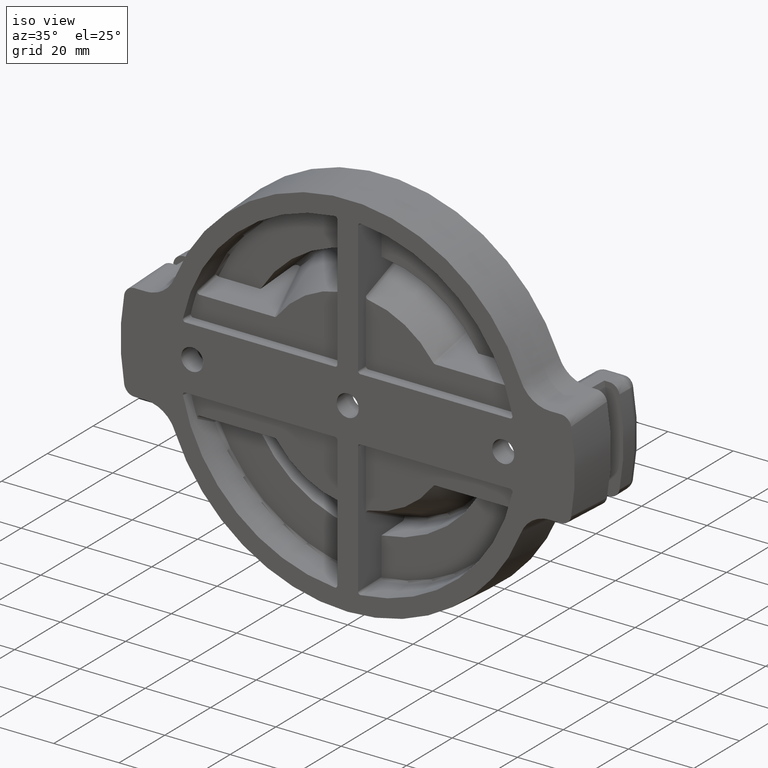
[diagram: clean part render]
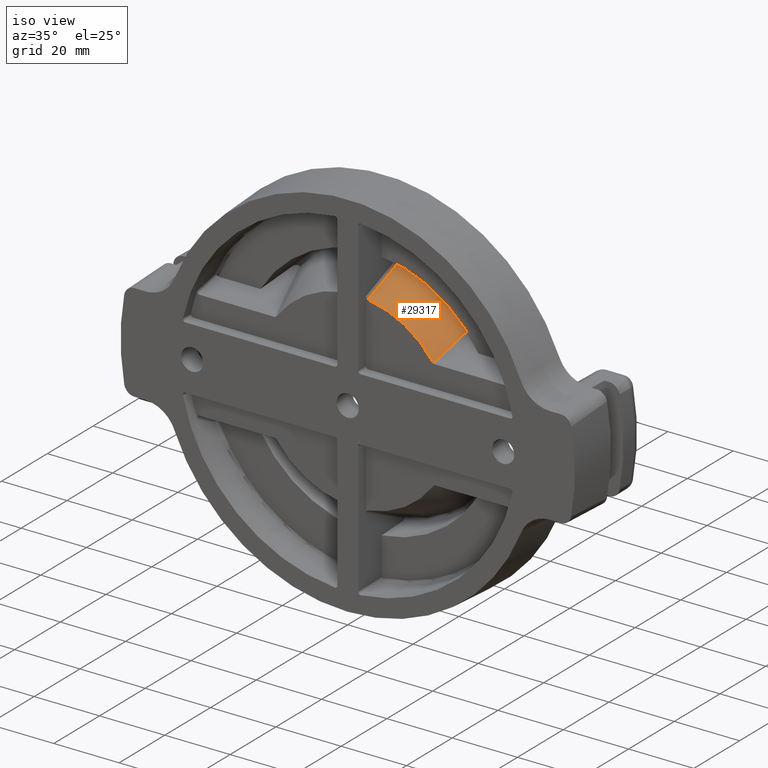
[diagram: same view with one face highlighted and labeled with its STEP entity id]
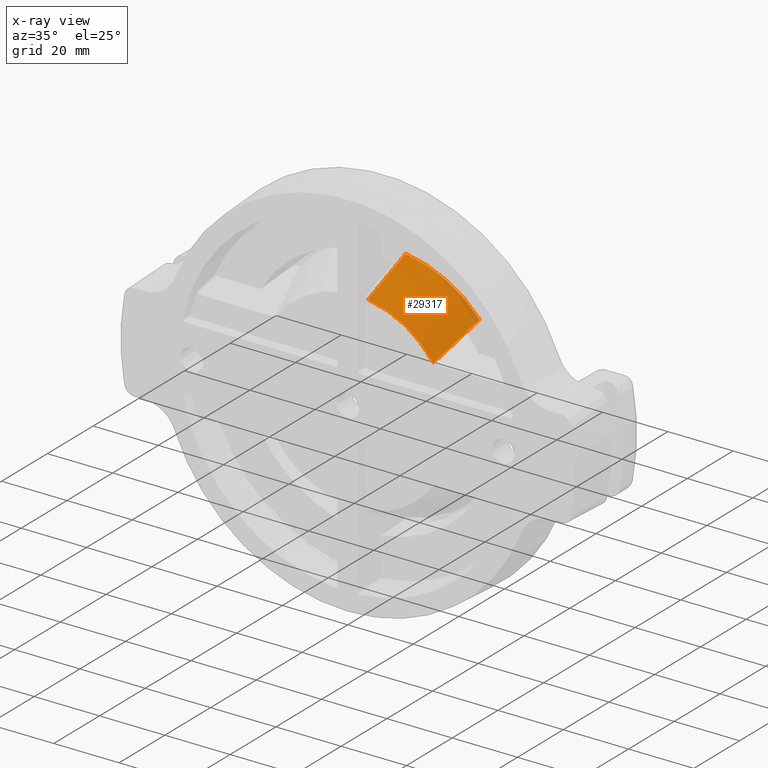
[diagram: x-ray of the same camera — body ghosted, the highlighted face saturated]
A machine part, iso view. The second image highlights one B-rep face of the part: STEP entity #29317.
The next image is the same camera in x-ray: the body ghosted, the highlighted face saturated — about 4% of this face is hidden behind the body in this view.
In plain terms, the highlighted conical surface has half-angle 25 deg.
Its self-contained STEP definition (entity closure, byte-faithful):
#2565 = CARTESIAN_POINT ( 'NONE',  ( 0.0000000000000000000, 0.1250000000000000300, 0.0000000000000000000 ) ) ;
#2573 = DIRECTION ( 'NONE',  ( -0.0000000000000000000, -1.000000000000000000, -0.0000000000000000000 ) ) ;
#2574 = DIRECTION ( 'NONE',  ( 1.776356839400250500E-015, 0.0000000000000000000, 1.000000000000000000 ) ) ;
#3486 = CIRCLE ( 'NONE', #12354, 1.439093768214044600 ) ;
#5475 = CARTESIAN_POINT ( 'NONE',  ( 0.9455306889045732600, 0.1250000000000000300, 0.6707257293922175300 ) ) ;
#5488 = CARTESIAN_POINT ( 'NONE',  ( 0.1888097916391700300, 0.7250892288995135500, 1.426654035249496300 ) ) ;
#5517 = CARTESIAN_POINT ( 'NONE',  ( 0.9942358607354898600, 0.3245060129297285800, 0.7628584657525210300 ) ) ;
#5519 = CARTESIAN_POINT ( 'NONE',  ( 1.039500466852395900, 0.5246081612140087700, 0.8554705154947027700 ) ) ;
#5521 = CARTESIAN_POINT ( 'NONE',  ( 1.082402062752005900, 0.7250892288995135500, 0.9483652504508486300 ) ) ;
#5524 = CARTESIAN_POINT ( 'NONE',  ( 0.0000000000000000000, 0.7250892288995134400, 0.0000000000000000000 ) ) ;
#5526 = CARTESIAN_POINT ( 'NONE',  ( 0.1878569212007646900, 0.7069636345795238300, 1.418254340702804100 ) ) ;
#5528 = CARTESIAN_POINT ( 'NONE',  ( 0.1869040002954244200, 0.6888380498057187200, 1.409854631281356200 ) ) ;
#5530 = CARTESIAN_POINT ( 'NONE',  ( 0.1859510262109140800, 0.6707124750824400300, 1.401454906205613900 ) ) ;
#5532 = CARTESIAN_POINT ( 'NONE',  ( 0.1821391298726066900, 0.5982101761842667500, 1.367856005900300000 ) ) ;
#5534 = CARTESIAN_POINT ( 'NONE',  ( 0.1783263872932623900, 0.5257080372451702300, 1.334256856413238000 ) ) ;
#5536 = CARTESIAN_POINT ( 'NONE',  ( 0.1745125904735285700, 0.4532060968209099500, 1.300657398240890900 ) ) ;
#5538 = CARTESIAN_POINT ( 'NONE',  ( 0.1687577227933380300, 0.3438035529990297600, 1.249957152515307300 ) ) ;
#5540 = CARTESIAN_POINT ( 'NONE',  ( 0.1630004828406031700, 0.2344014560641310400, 1.199256211628978900 ) ) ;
#5542 = CARTESIAN_POINT ( 'NONE',  ( 0.1572398165033016300, 0.1250000000000000300, 1.148554277269945700 ) ) ;
#5547 = DIRECTION ( 'NONE',  ( -0.0000000000000000000, -1.000000000000000000, -0.0000000000000000000 ) ) ;
#5549 = DIRECTION ( 'NONE',  ( -3.552713678800500900E-015, 0.0000000000000000000, 1.000000000000000000 ) ) ;
#7360 = EDGE_CURVE ( 'NONE', #30803, #30804, #28707, .T. ) ;
#11278 = CARTESIAN_POINT ( 'NONE',  ( 0.0000000000000000000, 0.2693454345648251800, 0.0000000000000000000 ) ) ;
#11280 = DIRECTION ( 'NONE',  ( 0.0000000000000000000, 0.0000000000000000000, 1.000000000000000000 ) ) ;
#11281 = DIRECTION ( 'NONE',  ( 0.0000000000000000000, 1.000000000000000000, 0.0000000000000000000 ) ) ;
#11913 = AXIS2_PLACEMENT_3D ( 'NONE', #11278, #11281, #11280 ) ;
#12354 = AXIS2_PLACEMENT_3D ( 'NONE', #5524, #5547, #5549 ) ;
#12594 = B_SPLINE_CURVE_WITH_KNOTS ( 'NONE', 3,
 ( #5475, #5517, #5519, #5521 ),
 .UNSPECIFIED., .F., .F.,
 ( 4, 4 ),
 ( 1.734723475976807100E-018, 0.01715085350374084800 ),
 .UNSPECIFIED. ) ;
#12595 = B_SPLINE_CURVE_WITH_KNOTS ( 'NONE', 3,
 ( #5488, #5526, #5528, #5530, #5532, #5534, #5536, #5538, #5540, #5542 ),
 .UNSPECIFIED., .F., .F.,
 ( 4, 3, 3, 4 ),
 ( 0.0000000000000000000, 0.001524000000005642400, 0.007620000000878101400, 0.01681862149244811200 ),
 .UNSPECIFIED. ) ;
#13613 = CARTESIAN_POINT ( 'NONE',  ( 0.9455306889045732600, 0.1250000000000000300, 0.6707257293922175300 ) ) ;
#13614 = CARTESIAN_POINT ( 'NONE',  ( 0.1572398165033016300, 0.1250000000000000300, 1.148554277269945700 ) ) ;
#13625 = CARTESIAN_POINT ( 'NONE',  ( 1.082402062752005900, 0.7250892288995135500, 0.9483652504508486300 ) ) ;
#13626 = CARTESIAN_POINT ( 'NONE',  ( 0.1888097916391700300, 0.7250892288995135500, 1.426654035249496300 ) ) ;
#15299 = EDGE_LOOP ( 'NONE', ( #23714, #23713, #23712, #23711 ) ) ;
#21012 = AXIS2_PLACEMENT_3D ( 'NONE', #2565, #2573, #2574 ) ;
#21643 = EDGE_CURVE ( 'NONE', #30803, #30815, #12594, .T. ) ;
#21644 = EDGE_CURVE ( 'NONE', #30816, #30804, #12595, .T. ) ;
#21645 = EDGE_CURVE ( 'NONE', #30815, #30816, #3486, .T. ) ;
#23711 = ORIENTED_EDGE ( 'NONE', *, *, #21643, .T. ) ;
#23712 = ORIENTED_EDGE ( 'NONE', *, *, #7360, .F. ) ;
#23713 = ORIENTED_EDGE ( 'NONE', *, *, #21644, .T. ) ;
#23714 = ORIENTED_EDGE ( 'NONE', *, *, #21645, .T. ) ;
#26245 = FACE_OUTER_BOUND ( 'NONE', #15299, .T. ) ;
#26251 = CONICAL_SURFACE ( 'NONE', #11913, 1.226576946759162300, 0.4363323129985833300 ) ;
#28707 = CIRCLE ( 'NONE', #21012, 1.159267565201873100 ) ;
#29317 = ADVANCED_FACE ( 'NONE', ( #26245 ), #26251, .T. ) ;
#30803 = VERTEX_POINT ( 'NONE', #13613 ) ;
#30804 = VERTEX_POINT ( 'NONE', #13614 ) ;
#30815 = VERTEX_POINT ( 'NONE', #13625 ) ;
#30816 = VERTEX_POINT ( 'NONE', #13626 ) ;